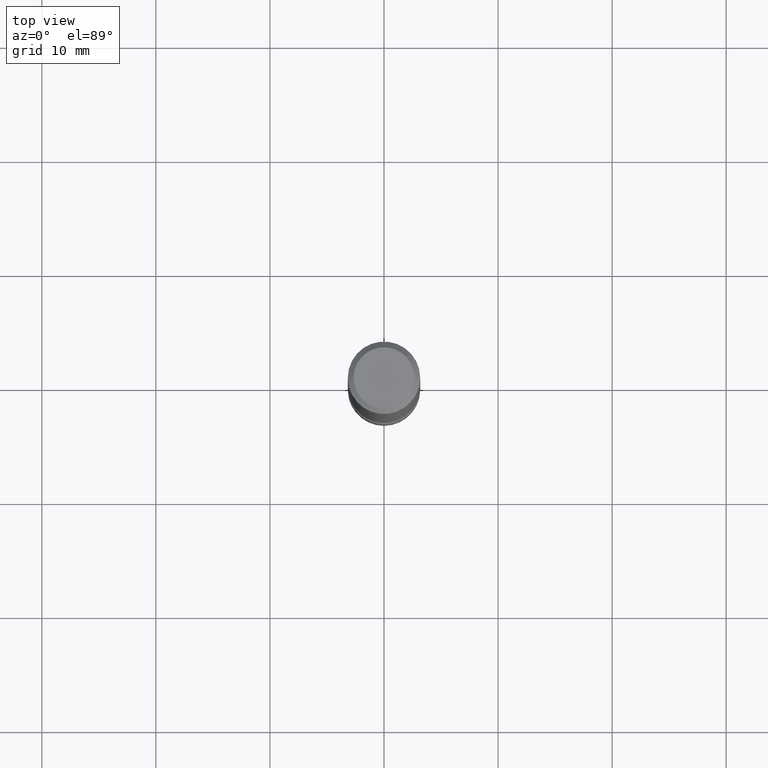
[diagram: clean part render]
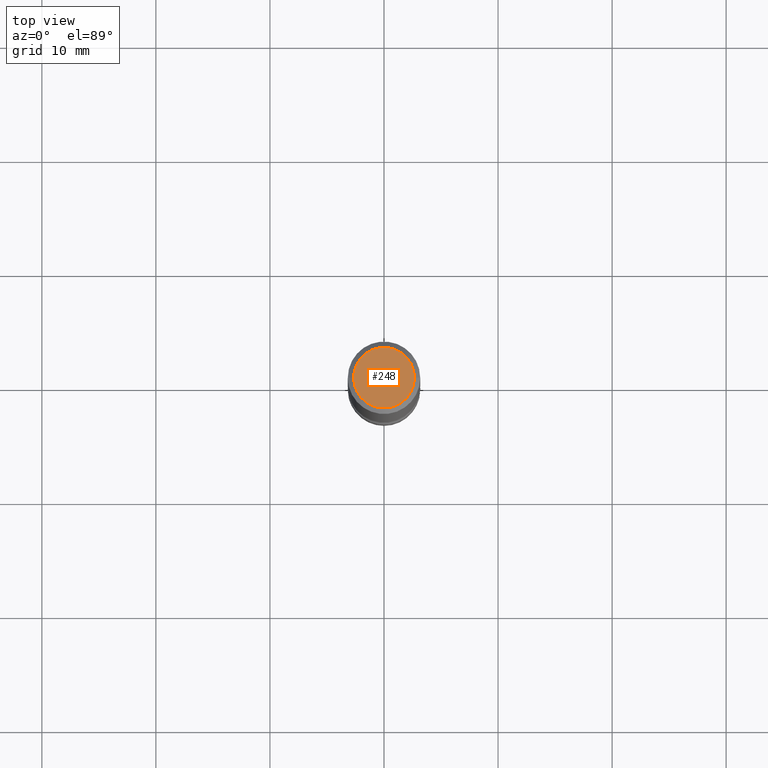
[diagram: same view with one face highlighted and labeled with its STEP entity id]
A machine part, top view. The second image highlights one B-rep face of the part: STEP entity #248.
In plain terms, the highlighted planar face has unit normal (-0, 0, 1).
Its self-contained STEP definition (entity closure, byte-faithful):
#47 = CARTESIAN_POINT ( 'NONE',  ( 0.000000000000000000, 0.000000000000000000, 0.000000000000000000 ) ) ;
#77 = EDGE_CURVE ( 'NONE', #104, #410, #226, .T. ) ;
#79 = DIRECTION ( 'NONE',  ( -2.438088387897960049E-29, 3.491481338843145188E-15, 1.000000000000000000 ) ) ;
#92 = EDGE_CURVE ( 'NONE', #410, #104, #299, .T. ) ;
#104 = VERTEX_POINT ( 'NONE', #360 ) ;
#126 = AXIS2_PLACEMENT_3D ( 'NONE', #282, #409, #325 ) ;
#147 = PLANE ( 'NONE',  #295 ) ;
#202 = EDGE_LOOP ( 'NONE', ( #543, #404 ) ) ;
#226 = CIRCLE ( 'NONE', #321, 0.1049999999999995659 ) ;
#248 = ADVANCED_FACE ( 'NONE', ( #437 ), #147, .T. ) ;
#282 = CARTESIAN_POINT ( 'NONE',  ( 0.000000000000000000, 0.000000000000000000, 0.000000000000000000 ) ) ;
#295 = AXIS2_PLACEMENT_3D ( 'NONE', #298, #79, #517 ) ;
#298 = CARTESIAN_POINT ( 'NONE',  ( 7.332110811570548689E-16, 0.1049999999999995659, -3.900823592740810138E-16 ) ) ;
#299 = CIRCLE ( 'NONE', #126, 0.1049999999999995659 ) ;
#302 = CARTESIAN_POINT ( 'NONE',  ( -0.1049999999999995659, 7.332110811570549675E-16, -5.119985614585711703E-30 ) ) ;
#321 = AXIS2_PLACEMENT_3D ( 'NONE', #47, #394, #529 ) ;
#325 = DIRECTION ( 'NONE',  ( -1.000000000000000000, 6.982962677686266711E-15, -4.876176775795935793E-29 ) ) ;
#360 = CARTESIAN_POINT ( 'NONE',  ( 0.1049999999999995659, -8.238720831321548048E-16, 5.444276250344130447E-30 ) ) ;
#394 = DIRECTION ( 'NONE',  ( 2.445468806185136597E-29, -3.491481338843145583E-15, -1.000000000000000000 ) ) ;
#404 = ORIENTED_EDGE ( 'NONE', *, *, #77, .F. ) ;
#409 = DIRECTION ( 'NONE',  ( 2.445468806185136597E-29, -3.491481338843145583E-15, -1.000000000000000000 ) ) ;
#410 = VERTEX_POINT ( 'NONE', #302 ) ;
#437 = FACE_OUTER_BOUND ( 'NONE', #202, .T. ) ;
#517 = DIRECTION ( 'NONE',  ( 1.000000000000000000, -6.982962677686265922E-15, 4.876176775795935793E-29 ) ) ;
#529 = DIRECTION ( 'NONE',  ( -1.000000000000000000, 6.982962677686266711E-15, -4.876176775795935793E-29 ) ) ;
#543 = ORIENTED_EDGE ( 'NONE', *, *, #92, .F. ) ;